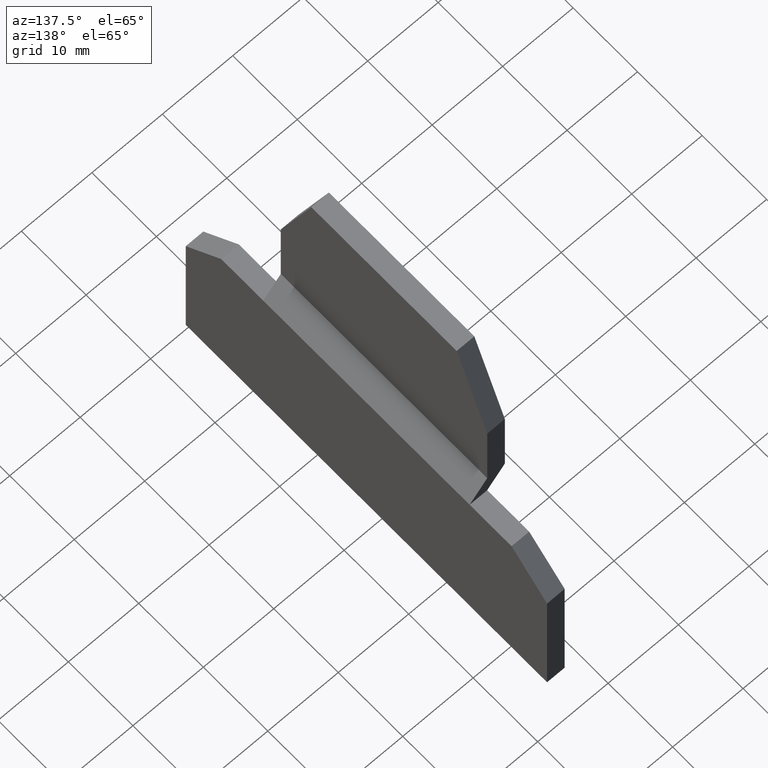
[diagram: clean part render]
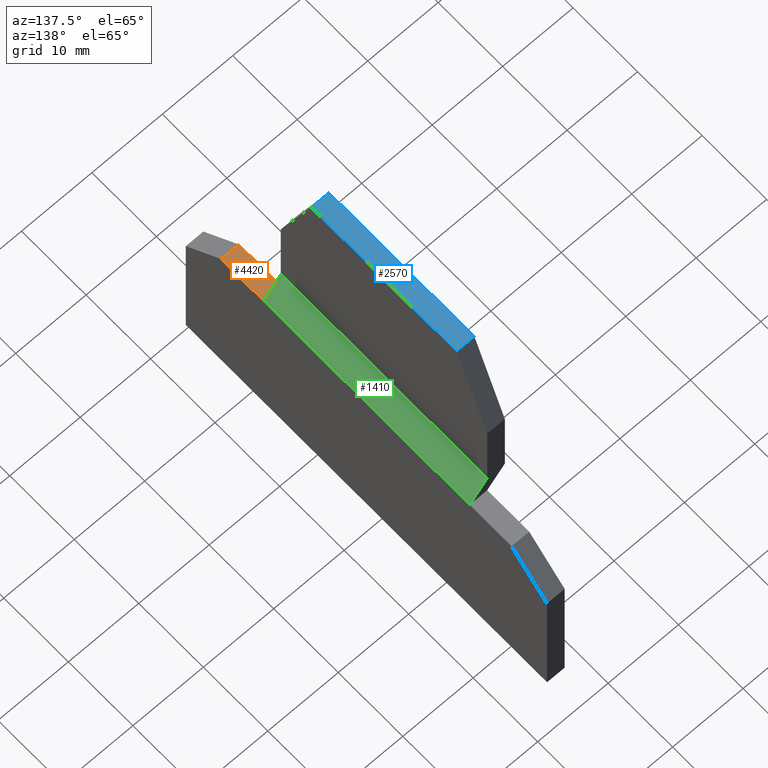
[diagram: same view with three faces highlighted in distinct colors, each labeled with its STEP entity id]
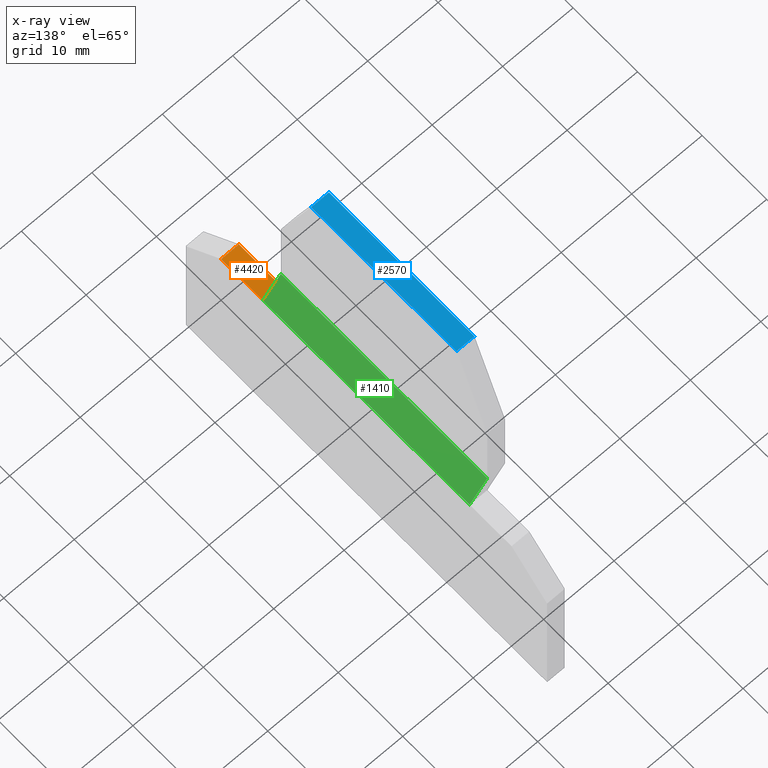
[diagram: x-ray of the same camera — body ghosted, the three highlighted faces saturated]
A machine part, auxiliary view with three faces highlighted in distinct colors.
The next image is the same camera in x-ray (body ghosted, the three faces saturated) — at least one of them is partly hidden behind the body in this view.
Their STEP definitions:

[orange] entity #4420 — the highlighted planar face has unit normal (-0, -0, 1).
#740=CARTESIAN_POINT('',(38.6626933469241,31.6364093308882,-2.5));
#750=VERTEX_POINT('',#740);
#1130=CARTESIAN_POINT('',(38.6626933469241,31.6364093308882,-5.));
#1140=VERTEX_POINT('',#1130);
#2780=CARTESIAN_POINT('',(38.6626933469241,31.6364093308882,-5.5000024))
;
#2790=DIRECTION('',(0.,0.,1.));
#2800=VECTOR('',#2790,1.);
#2810=LINE('',#2780,#2800);
#2820=EDGE_CURVE('',#1140,#750,#2810,.T.);
#3010=CARTESIAN_POINT('',(45.1626933469241,31.6364093308882,-2.5));
#3020=DIRECTION('',(0.,0.,-1.));
#3030=VECTOR('',#3020,1.);
#3040=LINE('',#3010,#3030);
#3050=CARTESIAN_POINT('',(45.162693346924,31.6364093308882,-2.5));
#3060=VERTEX_POINT('',#3050);
#3070=CARTESIAN_POINT('',(45.1626933469241,31.6364093308882,-5.));
#3080=VERTEX_POINT('',#3070);
#3090=EDGE_CURVE('',#3060,#3080,#3040,.T.);
#4100=CARTESIAN_POINT('',(3.31749034692406,31.6364093308882,-2.5));
#4110=DIRECTION('',(1.,0.,0.));
#4120=VECTOR('',#4110,1.);
#4130=LINE('',#4100,#4120);
#4140=EDGE_CURVE('',#750,#3060,#4130,.T.);
#4260=CARTESIAN_POINT('',(38.6626933469241,31.6364093308882,-5.5000024))
;
#4270=DIRECTION('',(-0.,1.,0.));
#4280=DIRECTION('',(1.,0.,0.));
#4290=AXIS2_PLACEMENT_3D('',#4260,#4270,#4280);
#4300=PLANE('',#4290);
#4310=ORIENTED_EDGE('',*,*,#2820,.T.);
#4320=CARTESIAN_POINT('',(3.31749034692406,31.6364093308882,-5.));
#4330=DIRECTION('',(1.,0.,0.));
#4340=VECTOR('',#4330,1.);
#4350=LINE('',#4320,#4340);
#4360=EDGE_CURVE('',#1140,#3080,#4350,.T.);
#4370=ORIENTED_EDGE('',*,*,#4360,.F.);
#4380=ORIENTED_EDGE('',*,*,#3090,.T.);
#4390=ORIENTED_EDGE('',*,*,#4140,.T.);
#4400=EDGE_LOOP('',(#4390,#4380,#4370,#4310));
#4410=FACE_OUTER_BOUND('',#4400,.T.);
#4420=ADVANCED_FACE('',(#4410),#4300,.T.);

[blue] entity #2570 — the highlighted planar face has unit normal (-0, -0, 1).
#60=CARTESIAN_POINT('',(0.00115534692405816,58.6364093308882,
4.88498130835069E-15));
#70=DIRECTION('',(-1.,0.,0.));
#80=VECTOR('',#70,1.);
#90=LINE('',#60,#80);
#100=CARTESIAN_POINT('',(33.9310803014635,58.6364093308882,
4.88498130835069E-15));
#110=VERTEX_POINT('',#100);
#120=CARTESIAN_POINT('',(11.3943063923844,58.6364093308882,
4.88498130835069E-15));
#130=VERTEX_POINT('',#120);
#140=EDGE_CURVE('',#110,#130,#90,.T.);
#1540=CARTESIAN_POINT('',(33.9310803014635,58.6364093308882,
3.99680288865056E-15));
#1550=DIRECTION('',(0.,0.,1.));
#1560=VECTOR('',#1550,1.);
#1570=LINE('',#1540,#1560);
#1580=CARTESIAN_POINT('',(33.9310803014635,58.6364093308882,-2.5));
#1590=VERTEX_POINT('',#1580);
#1600=EDGE_CURVE('',#1590,#110,#1570,.T.);
#2340=CARTESIAN_POINT('',(12.0945139305945,58.6364093308882,-5.5000024))
;
#2350=DIRECTION('',(-0.,1.,0.));
#2360=DIRECTION('',(1.,0.,0.));
#2370=AXIS2_PLACEMENT_3D('',#2340,#2350,#2360);
#2380=PLANE('',#2370);
#2390=CARTESIAN_POINT('',(11.3943063923844,58.6364093308882,
3.99680288865056E-15));
#2400=DIRECTION('',(0.,0.,-1.));
#2410=VECTOR('',#2400,1.);
#2420=LINE('',#2390,#2410);
#2430=CARTESIAN_POINT('',(11.3943063923844,58.6364093308882,-2.5));
#2440=VERTEX_POINT('',#2430);
#2450=EDGE_CURVE('',#130,#2440,#2420,.T.);
#2460=ORIENTED_EDGE('',*,*,#2450,.F.);
#2470=CARTESIAN_POINT('',(0.00115534692405816,58.6364093308882,-2.5));
#2480=DIRECTION('',(-1.,0.,0.));
#2490=VECTOR('',#2480,1.);
#2500=LINE('',#2470,#2490);
#2510=EDGE_CURVE('',#1590,#2440,#2500,.T.);
#2520=ORIENTED_EDGE('',*,*,#2510,.T.);
#2530=ORIENTED_EDGE('',*,*,#1600,.F.);
#2540=ORIENTED_EDGE('',*,*,#140,.F.);
#2550=EDGE_LOOP('',(#2540,#2530,#2520,#2460));
#2560=FACE_OUTER_BOUND('',#2550,.T.);
#2570=ADVANCED_FACE('',(#2560),#2380,.T.);

[green] entity #1410 — the highlighted planar face has unit normal (0.766, 0, 0.6428).
#1020=CARTESIAN_POINT('',(-5.33730665307594,34.6157933123737,-2.5));
#1030=DIRECTION('',(0.,0.642787609686539,-0.766044443118978));
#1040=DIRECTION('',(0.,0.766044443118978,0.642787609686539));
#1050=AXIS2_PLACEMENT_3D('',#1020,#1030,#1040);
#1060=PLANE('',#1050);
#1070=CARTESIAN_POINT('',(-5.33730665307594,31.6364093308882,-5.));
#1080=DIRECTION('',(1.,0.,0.));
#1090=VECTOR('',#1080,1.);
#1100=LINE('',#1070,#1090);
#1110=CARTESIAN_POINT('',(6.66269334692405,31.6364093308882,-5.));
#1120=VERTEX_POINT('',#1110);
#1130=CARTESIAN_POINT('',(38.6626933469241,31.6364093308882,-5.));
#1140=VERTEX_POINT('',#1130);
#1150=EDGE_CURVE('',#1120,#1140,#1100,.T.);
#1160=ORIENTED_EDGE('',*,*,#1150,.F.);
#1170=CARTESIAN_POINT('',(38.6626933469241,0.00564033088821247,
-31.5413666017537));
#1180=DIRECTION('',(0.,-0.766044443118978,-0.642787609686539));
#1190=VECTOR('',#1180,1.);
#1200=LINE('',#1170,#1190);
#1210=CARTESIAN_POINT('',(38.6626933469241,34.6157933123737,-2.5));
#1220=VERTEX_POINT('',#1210);
#1230=EDGE_CURVE('',#1220,#1140,#1200,.T.);
#1240=ORIENTED_EDGE('',*,*,#1230,.T.);
#1250=CARTESIAN_POINT('',(-5.33730665307594,34.6157933123737,-2.5));
#1260=DIRECTION('',(1.,0.,0.));
#1270=VECTOR('',#1260,1.);
#1280=LINE('',#1250,#1270);
#1290=CARTESIAN_POINT('',(6.66269334692405,34.6157933123737,-2.5));
#1300=VERTEX_POINT('',#1290);
#1310=EDGE_CURVE('',#1300,#1220,#1280,.T.);
#1320=ORIENTED_EDGE('',*,*,#1310,.T.);
#1330=CARTESIAN_POINT('',(6.66269334692405,0.00564033088821247,
-31.5413666017537));
#1340=DIRECTION('',(0.,0.766044443118978,0.642787609686539));
#1350=VECTOR('',#1340,1.);
#1360=LINE('',#1330,#1350);
#1370=EDGE_CURVE('',#1120,#1300,#1360,.T.);
#1380=ORIENTED_EDGE('',*,*,#1370,.T.);
#1390=EDGE_LOOP('',(#1380,#1320,#1240,#1160));
#1400=FACE_OUTER_BOUND('',#1390,.T.);
#1410=ADVANCED_FACE('',(#1400),#1060,.T.);